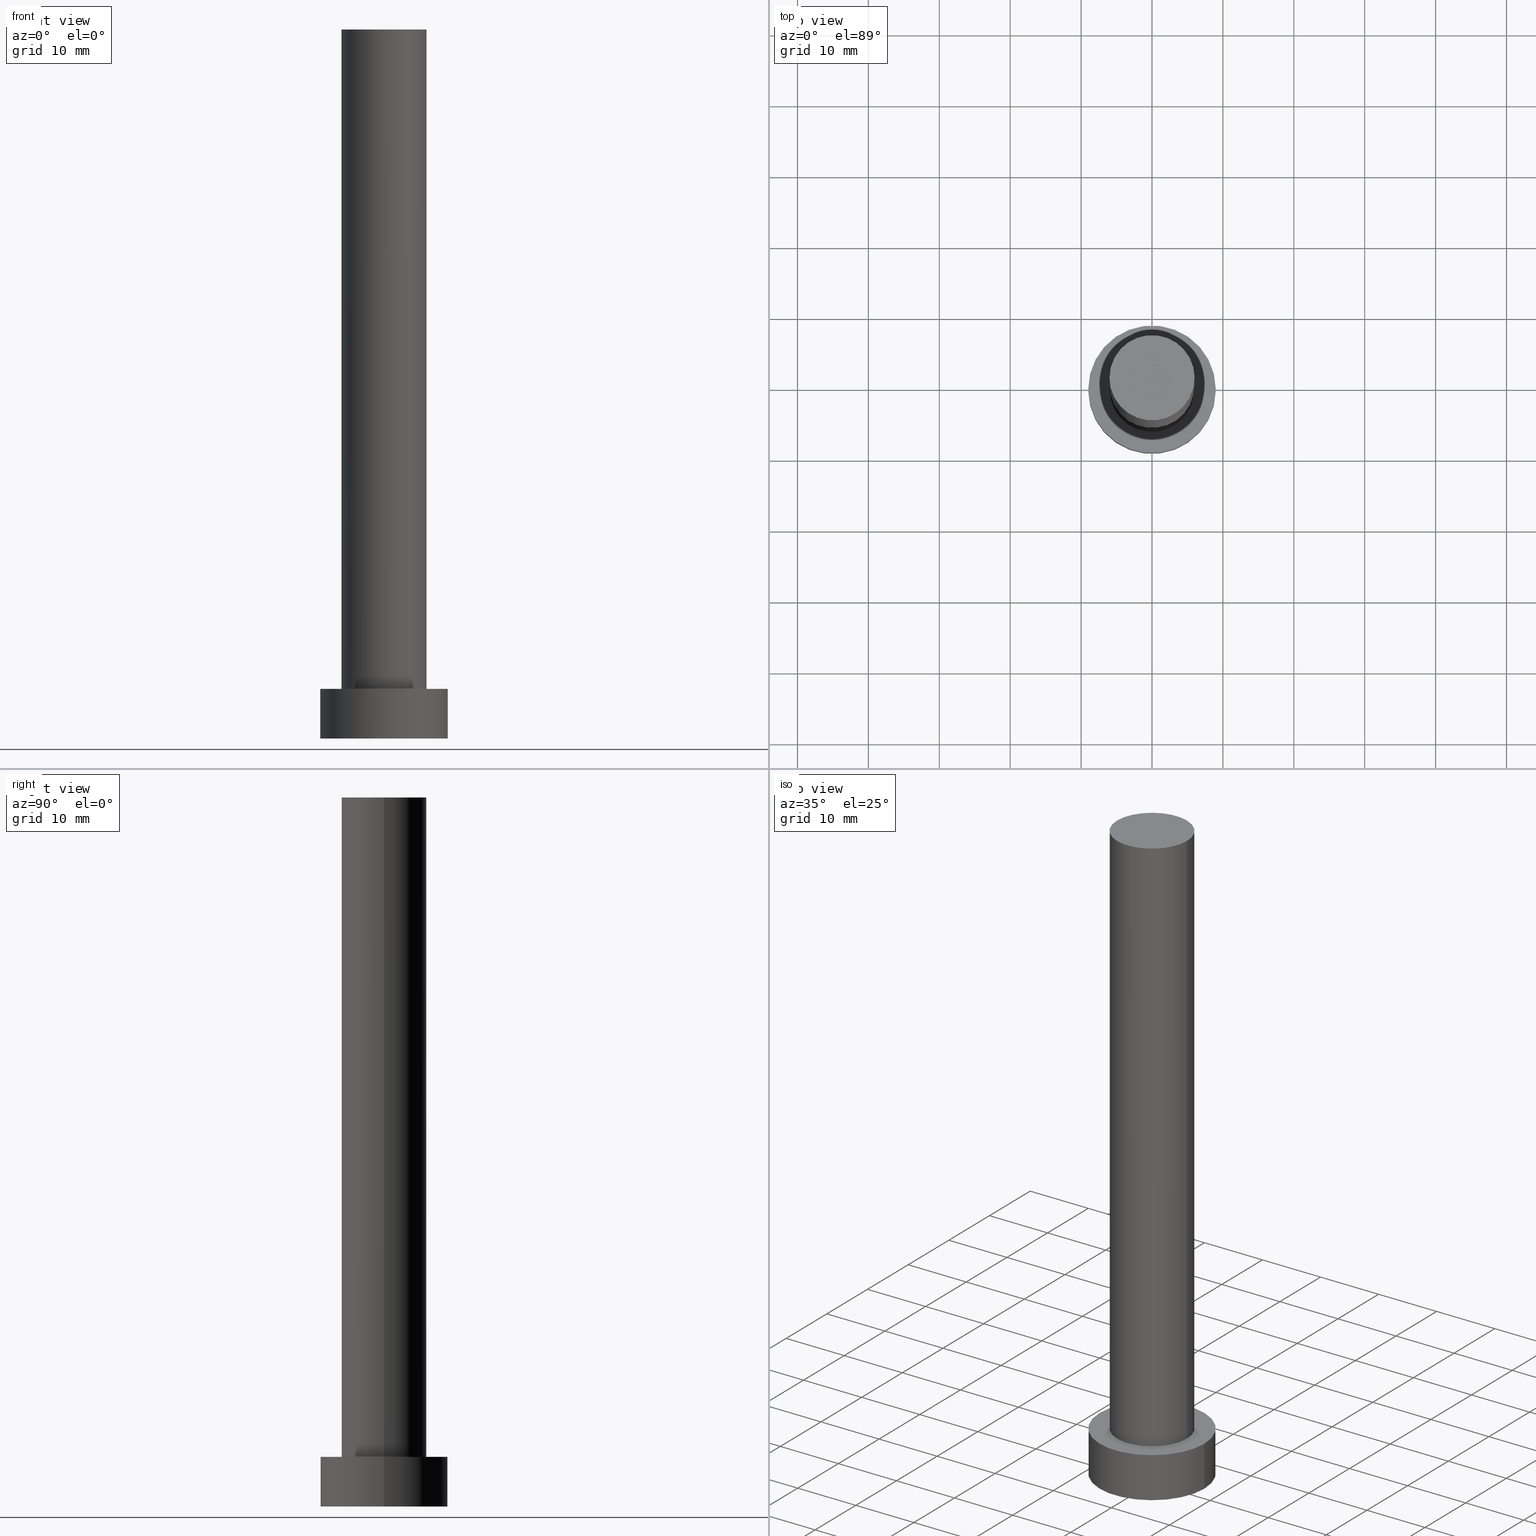
[diagram: canonical four-view strip — front | top / right | iso, engineering-drawing reading convention]
A machine part, canonical four-view strip (front | top / right | iso — engineering-drawing reading convention). The complete STEP part file that produces these views, byte-faithful:
ISO-10303-21;
HEADER;
FILE_DESCRIPTION (( 'STEP AP203' ),
    '1' );
FILE_NAME ('d872.STEP',
    '2023-02-12T10:50:17',
    ( '' ),
    ( '' ),
    'SwSTEP 2.0',
    'SolidWorks 2019',
    '' );
FILE_SCHEMA (( 'CONFIG_CONTROL_DESIGN' ));
ENDSEC;

DATA;
#1 = VECTOR ( 'NONE', #46, 1000.000000000000000 ) ;
#2 = ADVANCED_FACE ( 'NONE', ( #95 ), #214, .T. ) ;
#3 = APPROVAL_ROLE ( '' ) ;
#4 = CYLINDRICAL_SURFACE ( 'NONE', #236, 9.000000000000000000 ) ;
#5 = VECTOR ( 'NONE', #252, 1000.000000000000000 ) ;
#6 = PERSON_AND_ORGANIZATION_ROLE ( 'creator' ) ;
#7 =( GEOMETRIC_REPRESENTATION_CONTEXT ( 3 ) GLOBAL_UNCERTAINTY_ASSIGNED_CONTEXT ( ( #70 ) ) GLOBAL_UNIT_ASSIGNED_CONTEXT ( ( #111, #31, #110 ) ) REPRESENTATION_CONTEXT ( 'NONE', 'WORKASPACE' ) );
#8 = ADVANCED_FACE ( 'NONE', ( #182, #87 ), #131, .T. ) ;
#9 = COORDINATED_UNIVERSAL_TIME_OFFSET ( 1, 0, .AHEAD. ) ;
#10 = CARTESIAN_POINT ( 'NONE',  ( 0.000000000000000000, 0.000000000000000000, 7.000000000000000000 ) ) ;
#11 = CALENDAR_DATE ( 2023, 12, 2 ) ;
#12 = CARTESIAN_POINT ( 'NONE',  ( 6.000000000000000888, 7.347880794884119736E-16, 100.0000000000000000 ) ) ;
#13 = DIRECTION ( 'NONE',  ( -0.000000000000000000, -0.000000000000000000, -1.000000000000000000 ) ) ;
#14 = LOCAL_TIME ( 11, 50, 17.00000000000000000, #9 ) ;
#15 = CC_DESIGN_PERSON_AND_ORGANIZATION_ASSIGNMENT ( #247, #91, ( #253 ) ) ;
#16 = VERTEX_POINT ( 'NONE', #170 ) ;
#17 = DIRECTION ( 'NONE',  ( 0.000000000000000000, 0.000000000000000000, 1.000000000000000000 ) ) ;
#18 = EDGE_CURVE ( 'NONE', #35, #142, #125, .T. ) ;
#19 = ORIENTED_EDGE ( 'NONE', *, *, #158, .F. ) ;
#20 = FACE_OUTER_BOUND ( 'NONE', #79, .T. ) ;
#21 = EDGE_LOOP ( 'NONE', ( #198, #173, #216, #121 ) ) ;
#22 = PERSON_AND_ORGANIZATION ( #161, #30 ) ;
#23 = CIRCLE ( 'NONE', #157, 9.000000000000000000 ) ;
#24 = APPROVAL_ROLE ( '' ) ;
#25 = DATE_TIME_ROLE ( 'classification_date' ) ;
#26 = AXIS2_PLACEMENT_3D ( 'NONE', #10, #145, #77 ) ;
#27 = EDGE_CURVE ( 'NONE', #172, #53, #114, .T. ) ;
#28 = CYLINDRICAL_SURFACE ( 'NONE', #212, 9.000000000000000000 ) ;
#29 = APPROVAL_STATUS ( 'not_yet_approved' ) ;
#30 = ORGANIZATION ( 'NEUR�EN�', 'NEUR�EN�', '' ) ;
#31 =( NAMED_UNIT ( * ) PLANE_ANGLE_UNIT ( ) SI_UNIT ( $, .RADIAN. ) );
#32 = FACE_OUTER_BOUND ( 'NONE', #135, .T. ) ;
#33 = DIRECTION ( 'NONE',  ( -0.000000000000000000, -0.000000000000000000, -1.000000000000000000 ) ) ;
#34 = EDGE_CURVE ( 'NONE', #146, #16, #66, .T. ) ;
#35 = VERTEX_POINT ( 'NONE', #12 ) ;
#36 = CARTESIAN_POINT ( 'NONE',  ( 0.000000000000000000, 0.000000000000000000, 100.0000000000000000 ) ) ;
#37 = ORIENTED_EDGE ( 'NONE', *, *, #242, .T. ) ;
#38 = DIRECTION ( 'NONE',  ( -1.000000000000000000, 0.000000000000000000, 0.000000000000000000 ) ) ;
#39 = VERTEX_POINT ( 'NONE', #208 ) ;
#40 = ADVANCED_BREP_SHAPE_REPRESENTATION ( 'd872', ( #219, #248 ), #7 ) ;
#41 = APPLICATION_CONTEXT ( 'configuration controlled 3d designs of mechanical parts and assemblies' ) ;
#42 = APPROVAL_DATE_TIME ( #202, #215 ) ;
#43 = CC_DESIGN_PERSON_AND_ORGANIZATION_ASSIGNMENT ( #22, #6, ( #239 ) ) ;
#44 = CARTESIAN_POINT ( 'NONE',  ( 0.000000000000000000, 0.000000000000000000, 7.000000000000000000 ) ) ;
#45 = LOCAL_TIME ( 11, 50, 17.00000000000000000, #188 ) ;
#46 = DIRECTION ( 'NONE',  ( -0.000000000000000000, -0.000000000000000000, -1.000000000000000000 ) ) ;
#47 = CARTESIAN_POINT ( 'NONE',  ( 0.000000000000000000, 0.000000000000000000, 0.000000000000000000 ) ) ;
#48 = EDGE_LOOP ( 'NONE', ( #237, #113, #178, #80 ) ) ;
#49 = AXIS2_PLACEMENT_3D ( 'NONE', #36, #17, #176 ) ;
#50 = CARTESIAN_POINT ( 'NONE',  ( 0.000000000000000000, 0.000000000000000000, 7.000000000000000000 ) ) ;
#51 = CIRCLE ( 'NONE', #179, 9.000000000000000000 ) ;
#52 = DIRECTION ( 'NONE',  ( -0.000000000000000000, -0.000000000000000000, -1.000000000000000000 ) ) ;
#53 = VERTEX_POINT ( 'NONE', #249 ) ;
#54 = CC_DESIGN_PERSON_AND_ORGANIZATION_ASSIGNMENT ( #129, #104, ( #253 ) ) ;
#55 = CARTESIAN_POINT ( 'NONE',  ( -6.000000000000000888, 0.000000000000000000, 100.0000000000000000 ) ) ;
#56 = EDGE_LOOP ( 'NONE', ( #37, #211 ) ) ;
#57 = PRODUCT ( 'd872', 'd872', '', ( #132 ) ) ;
#58 = EDGE_CURVE ( 'NONE', #16, #39, #23, .T. ) ;
#59 = DATE_AND_TIME ( #156, #181 ) ;
#60 = CC_DESIGN_DATE_AND_TIME_ASSIGNMENT ( #204, #25, ( #162 ) ) ;
#61 = VECTOR ( 'NONE', #231, 1000.000000000000000 ) ;
#62 = EDGE_CURVE ( 'NONE', #39, #16, #51, .T. ) ;
#63 = PERSON_AND_ORGANIZATION_ROLE ( 'design_owner' ) ;
#64 = CARTESIAN_POINT ( 'NONE',  ( 9.000000000000000000, 1.102182119232617714E-15, 7.000000000000000000 ) ) ;
#65 = EDGE_CURVE ( 'NONE', #238, #39, #112, .T. ) ;
#66 = LINE ( 'NONE', #221, #1 ) ;
#67 = CIRCLE ( 'NONE', #108, 9.000000000000000000 ) ;
#68 = APPROVAL_STATUS ( 'not_yet_approved' ) ;
#69 = DIRECTION ( 'NONE',  ( 1.000000000000000000, 0.000000000000000000, 0.000000000000000000 ) ) ;
#70 = UNCERTAINTY_MEASURE_WITH_UNIT (LENGTH_MEASURE( 1.000000000000000082E-05 ), #111, 'distance_accuracy_value', 'NONE');
#71 = DIRECTION ( 'NONE',  ( 0.000000000000000000, 0.000000000000000000, 1.000000000000000000 ) ) ;
#72 = LINE ( 'NONE', #227, #61 ) ;
#73 = ADVANCED_FACE ( 'NONE', ( #32 ), #28, .T. ) ;
#74 = CARTESIAN_POINT ( 'NONE',  ( 0.000000000000000000, 0.000000000000000000, 100.0000000000000000 ) ) ;
#75 = ORIENTED_EDGE ( 'NONE', *, *, #62, .T. ) ;
#76 = APPROVAL ( #68, 'NEUR�EN�' ) ;
#77 = DIRECTION ( 'NONE',  ( 1.000000000000000000, 0.000000000000000000, 0.000000000000000000 ) ) ;
#78 = CARTESIAN_POINT ( 'NONE',  ( -9.000000000000000000, 0.000000000000000000, 7.000000000000000000 ) ) ;
#79 = EDGE_LOOP ( 'NONE', ( #255, #213, #196, #117 ) ) ;
#80 = ORIENTED_EDGE ( 'NONE', *, *, #27, .T. ) ;
#81 = DIRECTION ( 'NONE',  ( -0.000000000000000000, -0.000000000000000000, -1.000000000000000000 ) ) ;
#82 = COORDINATED_UNIVERSAL_TIME_OFFSET ( 1, 0, .AHEAD. ) ;
#83 = COORDINATED_UNIVERSAL_TIME_OFFSET ( 1, 0, .AHEAD. ) ;
#84 = CC_DESIGN_APPROVAL ( #76, ( #162 ) ) ;
#85 = APPROVAL_STATUS ( 'not_yet_approved' ) ;
#86 = LOCAL_TIME ( 11, 50, 17.00000000000000000, #82 ) ;
#87 = FACE_OUTER_BOUND ( 'NONE', #56, .T. ) ;
#88 = AXIS2_PLACEMENT_3D ( 'NONE', #44, #151, #92 ) ;
#89 = DIRECTION ( 'NONE',  ( 0.000000000000000000, 0.000000000000000000, 1.000000000000000000 ) ) ;
#90 = EDGE_CURVE ( 'NONE', #35, #53, #166, .T. ) ;
#91 = PERSON_AND_ORGANIZATION_ROLE ( 'creator' ) ;
#92 = DIRECTION ( 'NONE',  ( 1.000000000000000000, 0.000000000000000000, -0.000000000000000000 ) ) ;
#93 = AXIS2_PLACEMENT_3D ( 'NONE', #134, #94, #118 ) ;
#94 = DIRECTION ( 'NONE',  ( 0.000000000000000000, 0.000000000000000000, 1.000000000000000000 ) ) ;
#95 = FACE_OUTER_BOUND ( 'NONE', #21, .T. ) ;
#96 = PERSON_AND_ORGANIZATION ( #161, #30 ) ;
#97 = CARTESIAN_POINT ( 'NONE',  ( -6.000000000000000888, 0.000000000000000000, 7.000000000000000000 ) ) ;
#98 = ADVANCED_FACE ( 'NONE', ( #133 ), #107, .T. ) ;
#99 = PLANE ( 'NONE',  #207 ) ;
#100 = APPROVAL ( #29, 'NEUR�EN�' ) ;
#101 = AXIS2_PLACEMENT_3D ( 'NONE', #74, #246, #128 ) ;
#102 = SECURITY_CLASSIFICATION_LEVEL ( 'unclassified' ) ;
#103 = CIRCLE ( 'NONE', #49, 6.000000000000000888 ) ;
#104 = PERSON_AND_ORGANIZATION_ROLE ( 'design_supplier' ) ;
#105 = PERSON_AND_ORGANIZATION ( #161, #30 ) ;
#106 = CLOSED_SHELL ( 'NONE', ( #2, #73, #180, #8, #203, #154, #98 ) ) ;
#107 = PLANE ( 'NONE',  #160 ) ;
#108 = AXIS2_PLACEMENT_3D ( 'NONE', #210, #245, #186 ) ;
#109 = DATE_AND_TIME ( #184, #240 ) ;
#110 =( NAMED_UNIT ( * ) SI_UNIT ( $, .STERADIAN. ) SOLID_ANGLE_UNIT ( ) );
#111 =( LENGTH_UNIT ( ) NAMED_UNIT ( * ) SI_UNIT ( .MILLI., .METRE. ) );
#112 = LINE ( 'NONE', #224, #174 ) ;
#113 = ORIENTED_EDGE ( 'NONE', *, *, #183, .F. ) ;
#114 = CIRCLE ( 'NONE', #26, 6.000000000000000888 ) ;
#115 = CC_DESIGN_SECURITY_CLASSIFICATION ( #162, ( #253 ) ) ;
#116 = FACE_OUTER_BOUND ( 'NONE', #171, .T. ) ;
#117 = ORIENTED_EDGE ( 'NONE', *, *, #58, .T. ) ;
#118 = DIRECTION ( 'NONE',  ( 1.000000000000000000, 0.000000000000000000, 0.000000000000000000 ) ) ;
#119 = EDGE_CURVE ( 'NONE', #142, #172, #72, .T. ) ;
#120 = CC_DESIGN_PERSON_AND_ORGANIZATION_ASSIGNMENT ( #228, #185, ( #162 ) ) ;
#121 = ORIENTED_EDGE ( 'NONE', *, *, #119, .F. ) ;
#122 = PERSON_AND_ORGANIZATION ( #161, #30 ) ;
#123 = AXIS2_PLACEMENT_3D ( 'NONE', #141, #189, #205 ) ;
#124 = APPROVAL_DATE_TIME ( #250, #76 ) ;
#125 = CIRCLE ( 'NONE', #101, 6.000000000000000888 ) ;
#126 = DIRECTION ( 'NONE',  ( -1.000000000000000000, 0.000000000000000000, 0.000000000000000000 ) ) ;
#127 = CC_DESIGN_APPROVAL ( #100, ( #253 ) ) ;
#128 = DIRECTION ( 'NONE',  ( 1.000000000000000000, 0.000000000000000000, 0.000000000000000000 ) ) ;
#129 = PERSON_AND_ORGANIZATION ( #161, #30 ) ;
#130 = DIRECTION ( 'NONE',  ( 1.000000000000000000, 0.000000000000000000, -0.000000000000000000 ) ) ;
#131 = PLANE ( 'NONE',  #88 ) ;
#132 = MECHANICAL_CONTEXT ( 'NONE', #41, 'mechanical' ) ;
#133 = FACE_OUTER_BOUND ( 'NONE', #232, .T. ) ;
#134 = CARTESIAN_POINT ( 'NONE',  ( 0.000000000000000000, 0.000000000000000000, 7.000000000000000000 ) ) ;
#135 = EDGE_LOOP ( 'NONE', ( #191, #175, #75, #167 ) ) ;
#136 = ORIENTED_EDGE ( 'NONE', *, *, #18, .T. ) ;
#137 = FACE_OUTER_BOUND ( 'NONE', #48, .T. ) ;
#138 = CALENDAR_DATE ( 2023, 12, 2 ) ;
#139 = DATE_TIME_ROLE ( 'creation_date' ) ;
#140 = APPLICATION_PROTOCOL_DEFINITION ( 'international standard', 'config_control_design', 1994, #150 ) ;
#141 = CARTESIAN_POINT ( 'NONE',  ( 0.000000000000000000, 0.000000000000000000, 7.000000000000000000 ) ) ;
#142 = VERTEX_POINT ( 'NONE', #55 ) ;
#143 = APPLICATION_PROTOCOL_DEFINITION ( 'international standard', 'config_control_design', 1994, #41 ) ;
#144 = CC_DESIGN_DATE_AND_TIME_ASSIGNMENT ( #59, #139, ( #239 ) ) ;
#145 = DIRECTION ( 'NONE',  ( 0.000000000000000000, 0.000000000000000000, 1.000000000000000000 ) ) ;
#146 = VERTEX_POINT ( 'NONE', #78 ) ;
#147 = DIRECTION ( 'NONE',  ( 0.000000000000000000, 0.000000000000000000, 1.000000000000000000 ) ) ;
#148 = APPROVAL_PERSON_ORGANIZATION ( #164, #100, #24 ) ;
#149 = ORIENTED_EDGE ( 'NONE', *, *, #27, .F. ) ;
#150 = APPLICATION_CONTEXT ( 'configuration controlled 3d designs of mechanical parts and assemblies' ) ;
#151 = DIRECTION ( 'NONE',  ( 0.000000000000000000, 0.000000000000000000, 1.000000000000000000 ) ) ;
#152 = EDGE_LOOP ( 'NONE', ( #149, #19 ) ) ;
#153 = ORIENTED_EDGE ( 'NONE', *, *, #62, .F. ) ;
#154 = ADVANCED_FACE ( 'NONE', ( #137 ), #199, .T. ) ;
#155 = APPROVAL_PERSON_ORGANIZATION ( #105, #76, #168 ) ;
#156 = CALENDAR_DATE ( 2023, 12, 2 ) ;
#157 = AXIS2_PLACEMENT_3D ( 'NONE', #47, #89, #163 ) ;
#158 = EDGE_CURVE ( 'NONE', #53, #172, #217, .T. ) ;
#159 = DIRECTION ( 'NONE',  ( 0.000000000000000000, 0.000000000000000000, 1.000000000000000000 ) ) ;
#160 = AXIS2_PLACEMENT_3D ( 'NONE', #190, #147, #251 ) ;
#161 = PERSON ( 'NEUR�EN�', 'NEUR�EN�', 'NEUR�EN�', ('NEUR�EN�'), ('NEUR�EN�'), ('NEUR�EN�') ) ;
#162 = SECURITY_CLASSIFICATION ( '', '', #102 ) ;
#163 = DIRECTION ( 'NONE',  ( 1.000000000000000000, 0.000000000000000000, 0.000000000000000000 ) ) ;
#164 = PERSON_AND_ORGANIZATION ( #161, #30 ) ;
#165 = CARTESIAN_POINT ( 'NONE',  ( 0.000000000000000000, 0.000000000000000000, 0.000000000000000000 ) ) ;
#166 = LINE ( 'NONE', #193, #5 ) ;
#167 = ORIENTED_EDGE ( 'NONE', *, *, #34, .F. ) ;
#168 = APPROVAL_ROLE ( '' ) ;
#169 = DIRECTION ( 'NONE',  ( -1.000000000000000000, 0.000000000000000000, 0.000000000000000000 ) ) ;
#170 = CARTESIAN_POINT ( 'NONE',  ( -9.000000000000000000, 0.000000000000000000, 0.000000000000000000 ) ) ;
#171 = EDGE_LOOP ( 'NONE', ( #209, #153 ) ) ;
#172 = VERTEX_POINT ( 'NONE', #97 ) ;
#173 = ORIENTED_EDGE ( 'NONE', *, *, #90, .T. ) ;
#174 = VECTOR ( 'NONE', #13, 1000.000000000000000 ) ;
#175 = ORIENTED_EDGE ( 'NONE', *, *, #65, .T. ) ;
#176 = DIRECTION ( 'NONE',  ( 1.000000000000000000, 0.000000000000000000, 0.000000000000000000 ) ) ;
#177 = CARTESIAN_POINT ( 'NONE',  ( 0.000000000000000000, 0.000000000000000000, 100.0000000000000000 ) ) ;
#178 = ORIENTED_EDGE ( 'NONE', *, *, #119, .T. ) ;
#179 = AXIS2_PLACEMENT_3D ( 'NONE', #254, #192, #69 ) ;
#180 = ADVANCED_FACE ( 'NONE', ( #20 ), #4, .T. ) ;
#181 = LOCAL_TIME ( 11, 50, 17.00000000000000000, #83 ) ;
#182 = FACE_BOUND ( 'NONE', #152, .T. ) ;
#183 = EDGE_CURVE ( 'NONE', #142, #35, #103, .T. ) ;
#184 = CALENDAR_DATE ( 2023, 12, 2 ) ;
#185 = PERSON_AND_ORGANIZATION_ROLE ( 'classification_officer' ) ;
#186 = DIRECTION ( 'NONE',  ( 1.000000000000000000, 0.000000000000000000, 0.000000000000000000 ) ) ;
#187 = ORIENTED_EDGE ( 'NONE', *, *, #183, .T. ) ;
#188 = COORDINATED_UNIVERSAL_TIME_OFFSET ( 1, 0, .AHEAD. ) ;
#189 = DIRECTION ( 'NONE',  ( 0.000000000000000000, 0.000000000000000000, 1.000000000000000000 ) ) ;
#190 = CARTESIAN_POINT ( 'NONE',  ( 0.000000000000000000, 0.000000000000000000, 100.0000000000000000 ) ) ;
#191 = ORIENTED_EDGE ( 'NONE', *, *, #218, .F. ) ;
#192 = DIRECTION ( 'NONE',  ( 0.000000000000000000, 0.000000000000000000, 1.000000000000000000 ) ) ;
#193 = CARTESIAN_POINT ( 'NONE',  ( 6.000000000000000888, 7.347880794884119736E-16, 100.0000000000000000 ) ) ;
#194 = PRODUCT_DEFINITION_SHAPE ( 'NONE', 'NONE',  #239 ) ;
#195 = CIRCLE ( 'NONE', #123, 9.000000000000000000 ) ;
#196 = ORIENTED_EDGE ( 'NONE', *, *, #34, .T. ) ;
#197 = DIRECTION ( 'NONE',  ( -1.000000000000000000, 0.000000000000000000, 0.000000000000000000 ) ) ;
#198 = ORIENTED_EDGE ( 'NONE', *, *, #18, .F. ) ;
#199 = CYLINDRICAL_SURFACE ( 'NONE', #243, 6.000000000000000888 ) ;
#200 = APPROVAL_PERSON_ORGANIZATION ( #96, #215, #3 ) ;
#201 = CARTESIAN_POINT ( 'NONE',  ( 0.000000000000000000, 0.000000000000000000, 100.0000000000000000 ) ) ;
#202 = DATE_AND_TIME ( #138, #86 ) ;
#203 = ADVANCED_FACE ( 'NONE', ( #116 ), #99, .F. ) ;
#204 = DATE_AND_TIME ( #206, #14 ) ;
#205 = DIRECTION ( 'NONE',  ( 1.000000000000000000, 0.000000000000000000, 0.000000000000000000 ) ) ;
#206 = CALENDAR_DATE ( 2023, 12, 2 ) ;
#207 = AXIS2_PLACEMENT_3D ( 'NONE', #241, #159, #130 ) ;
#208 = CARTESIAN_POINT ( 'NONE',  ( 9.000000000000000000, 1.102182119232617714E-15, 0.000000000000000000 ) ) ;
#209 = ORIENTED_EDGE ( 'NONE', *, *, #58, .F. ) ;
#210 = CARTESIAN_POINT ( 'NONE',  ( 0.000000000000000000, 0.000000000000000000, 7.000000000000000000 ) ) ;
#211 = ORIENTED_EDGE ( 'NONE', *, *, #218, .T. ) ;
#212 = AXIS2_PLACEMENT_3D ( 'NONE', #50, #33, #169 ) ;
#213 = ORIENTED_EDGE ( 'NONE', *, *, #242, .F. ) ;
#214 = CYLINDRICAL_SURFACE ( 'NONE', #220, 6.000000000000000888 ) ;
#215 = APPROVAL ( #85, 'NEUR�EN�' ) ;
#216 = ORIENTED_EDGE ( 'NONE', *, *, #158, .T. ) ;
#217 = CIRCLE ( 'NONE', #93, 6.000000000000000888 ) ;
#218 = EDGE_CURVE ( 'NONE', #238, #146, #67, .T. ) ;
#219 = MANIFOLD_SOLID_BREP ( 'P�idat vysunut�m3', #106 ) ;
#220 = AXIS2_PLACEMENT_3D ( 'NONE', #177, #81, #126 ) ;
#221 = CARTESIAN_POINT ( 'NONE',  ( -9.000000000000000000, 0.000000000000000000, 7.000000000000000000 ) ) ;
#222 = PRODUCT_RELATED_PRODUCT_CATEGORY ( 'detail', '', ( #57 ) ) ;
#223 = APPROVAL_DATE_TIME ( #109, #100 ) ;
#224 = CARTESIAN_POINT ( 'NONE',  ( 9.000000000000000000, 1.102182119232617714E-15, 7.000000000000000000 ) ) ;
#225 = SHAPE_DEFINITION_REPRESENTATION ( #194, #40 ) ;
#226 = DIRECTION ( 'NONE',  ( 1.000000000000000000, 0.000000000000000000, 0.000000000000000000 ) ) ;
#227 = CARTESIAN_POINT ( 'NONE',  ( -6.000000000000000888, 0.000000000000000000, 100.0000000000000000 ) ) ;
#228 = PERSON_AND_ORGANIZATION ( #161, #30 ) ;
#229 = CC_DESIGN_PERSON_AND_ORGANIZATION_ASSIGNMENT ( #122, #63, ( #57 ) ) ;
#230 = CC_DESIGN_APPROVAL ( #215, ( #239 ) ) ;
#231 = DIRECTION ( 'NONE',  ( -0.000000000000000000, -0.000000000000000000, -1.000000000000000000 ) ) ;
#232 = EDGE_LOOP ( 'NONE', ( #187, #136 ) ) ;
#233 = DIRECTION ( 'NONE',  ( -0.000000000000000000, -0.000000000000000000, -1.000000000000000000 ) ) ;
#234 = DESIGN_CONTEXT ( 'detailed design', #150, 'design' ) ;
#235 = CARTESIAN_POINT ( 'NONE',  ( 0.000000000000000000, 0.000000000000000000, 7.000000000000000000 ) ) ;
#236 = AXIS2_PLACEMENT_3D ( 'NONE', #235, #233, #197 ) ;
#237 = ORIENTED_EDGE ( 'NONE', *, *, #90, .F. ) ;
#238 = VERTEX_POINT ( 'NONE', #64 ) ;
#239 = PRODUCT_DEFINITION ( 'NEZN�M�', '', #253, #234 ) ;
#240 = LOCAL_TIME ( 11, 50, 17.00000000000000000, #244 ) ;
#241 = CARTESIAN_POINT ( 'NONE',  ( 0.000000000000000000, 0.000000000000000000, 0.000000000000000000 ) ) ;
#242 = EDGE_CURVE ( 'NONE', #146, #238, #195, .T. ) ;
#243 = AXIS2_PLACEMENT_3D ( 'NONE', #201, #52, #38 ) ;
#244 = COORDINATED_UNIVERSAL_TIME_OFFSET ( 1, 0, .AHEAD. ) ;
#245 = DIRECTION ( 'NONE',  ( 0.000000000000000000, 0.000000000000000000, 1.000000000000000000 ) ) ;
#246 = DIRECTION ( 'NONE',  ( 0.000000000000000000, 0.000000000000000000, 1.000000000000000000 ) ) ;
#247 = PERSON_AND_ORGANIZATION ( #161, #30 ) ;
#248 = AXIS2_PLACEMENT_3D ( 'NONE', #165, #71, #226 ) ;
#249 = CARTESIAN_POINT ( 'NONE',  ( 6.000000000000000888, 7.347880794884119736E-16, 7.000000000000000000 ) ) ;
#250 = DATE_AND_TIME ( #11, #45 ) ;
#251 = DIRECTION ( 'NONE',  ( 1.000000000000000000, 0.000000000000000000, -0.000000000000000000 ) ) ;
#252 = DIRECTION ( 'NONE',  ( -0.000000000000000000, -0.000000000000000000, -1.000000000000000000 ) ) ;
#253 = PRODUCT_DEFINITION_FORMATION_WITH_SPECIFIED_SOURCE ( 'LIBOVOLN�', '', #57, .NOT_KNOWN. ) ;
#254 = CARTESIAN_POINT ( 'NONE',  ( 0.000000000000000000, 0.000000000000000000, 0.000000000000000000 ) ) ;
#255 = ORIENTED_EDGE ( 'NONE', *, *, #65, .F. ) ;
ENDSEC;
END-ISO-10303-21;
